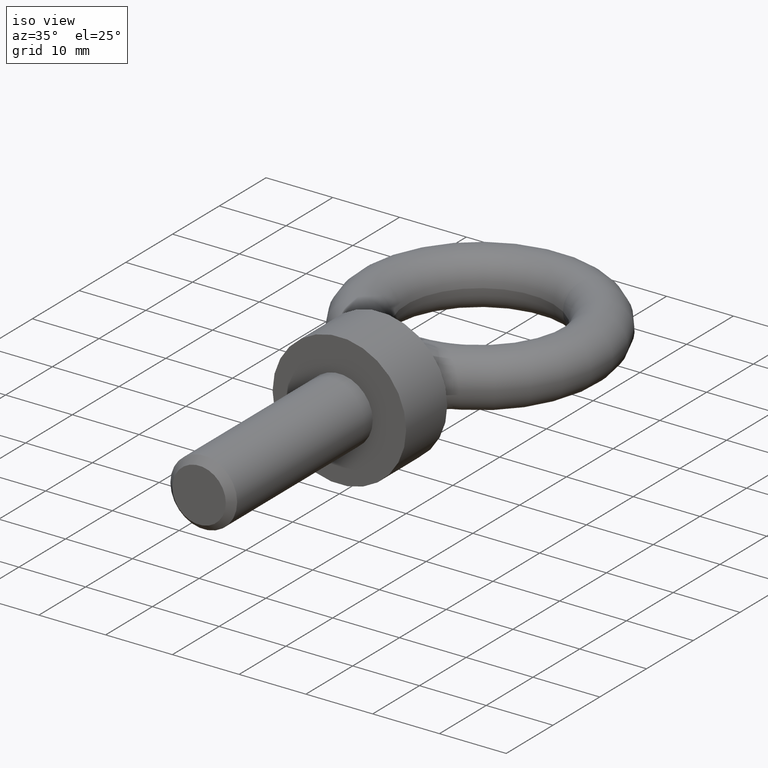
[diagram: clean part render]
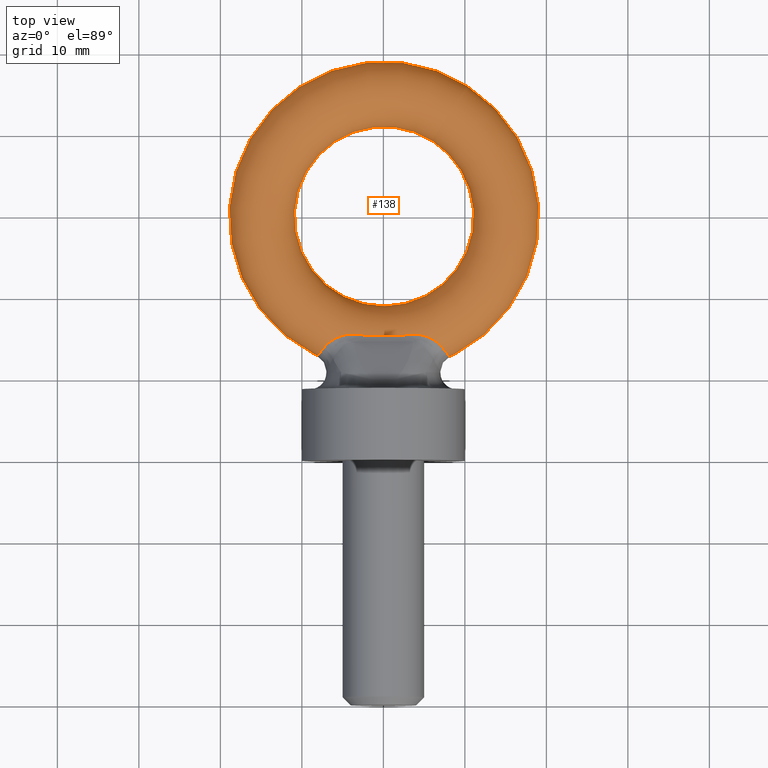
[diagram: tour spotlight — one face highlighted and labeled with its STEP entity id]
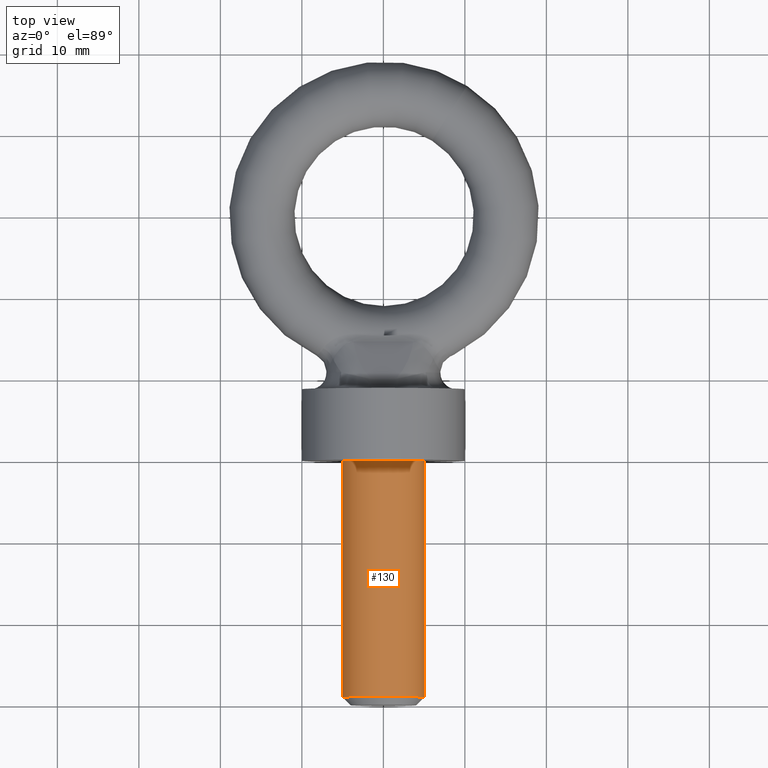
[diagram: tour spotlight — one face highlighted and labeled with its STEP entity id]
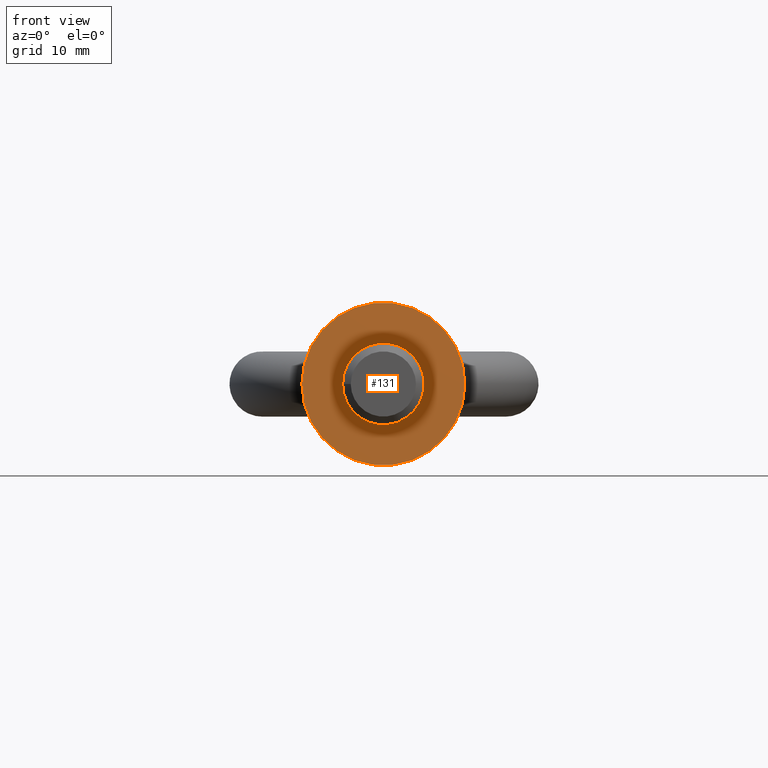
[diagram: tour spotlight — one face highlighted and labeled with its STEP entity id]
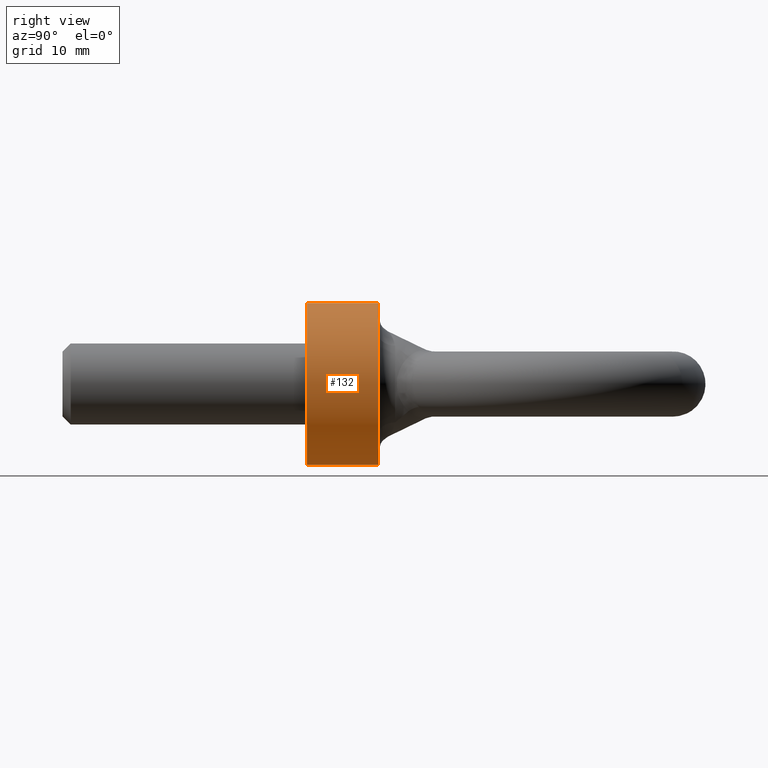
[diagram: tour spotlight — one face highlighted and labeled with its STEP entity id]
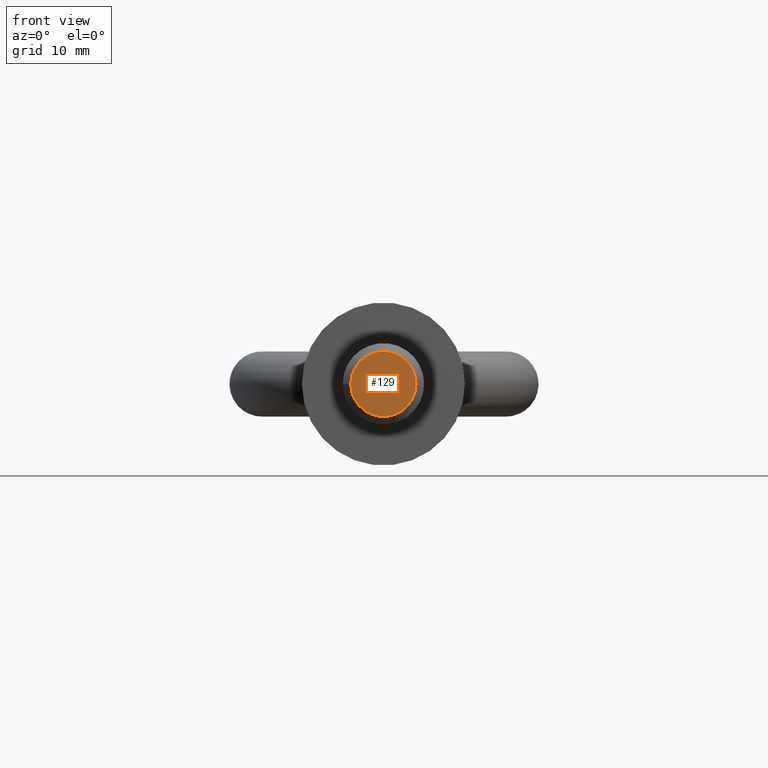
[diagram: tour spotlight — one face highlighted and labeled with its STEP entity id]
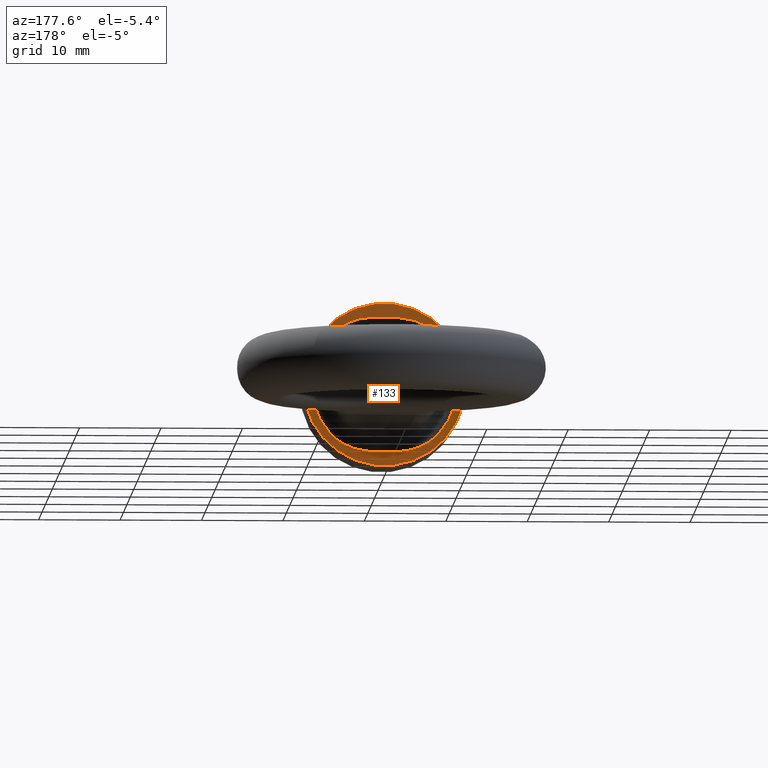
[diagram: tour spotlight — one face highlighted and labeled with its STEP entity id]
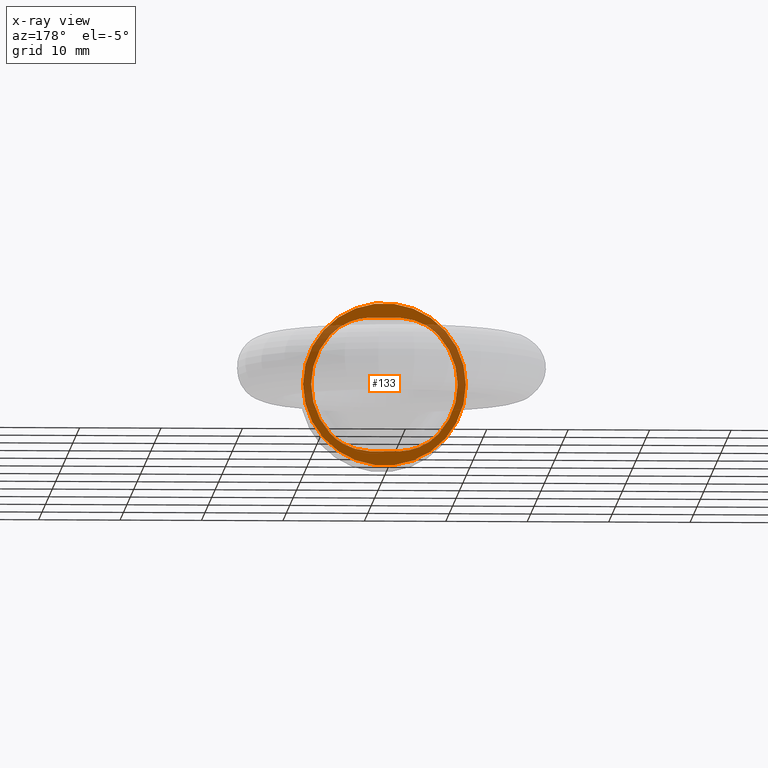
[diagram: x-ray of the same camera — body ghosted, this tour face saturated]
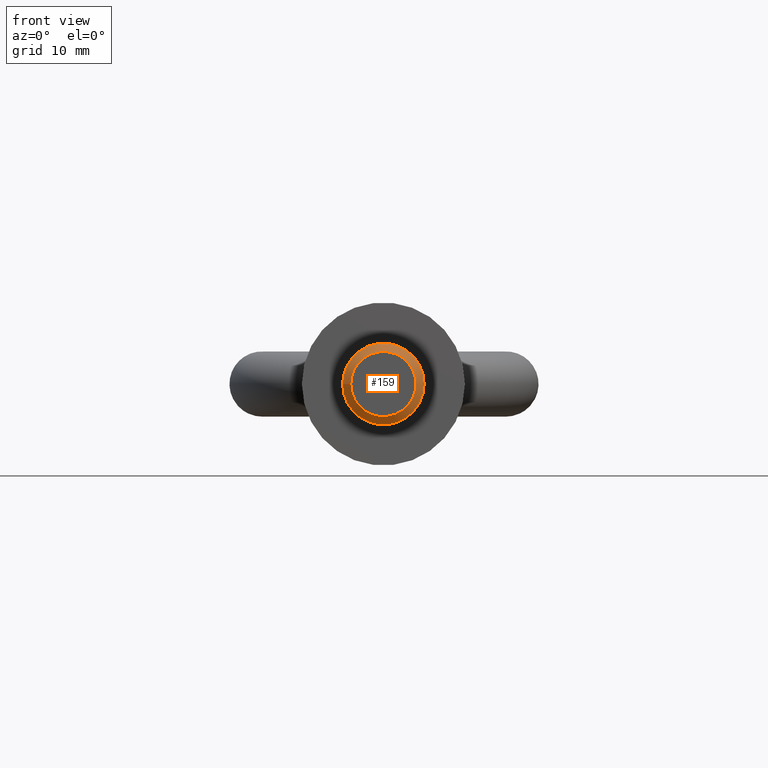
[diagram: tour spotlight — one face highlighted and labeled with its STEP entity id]
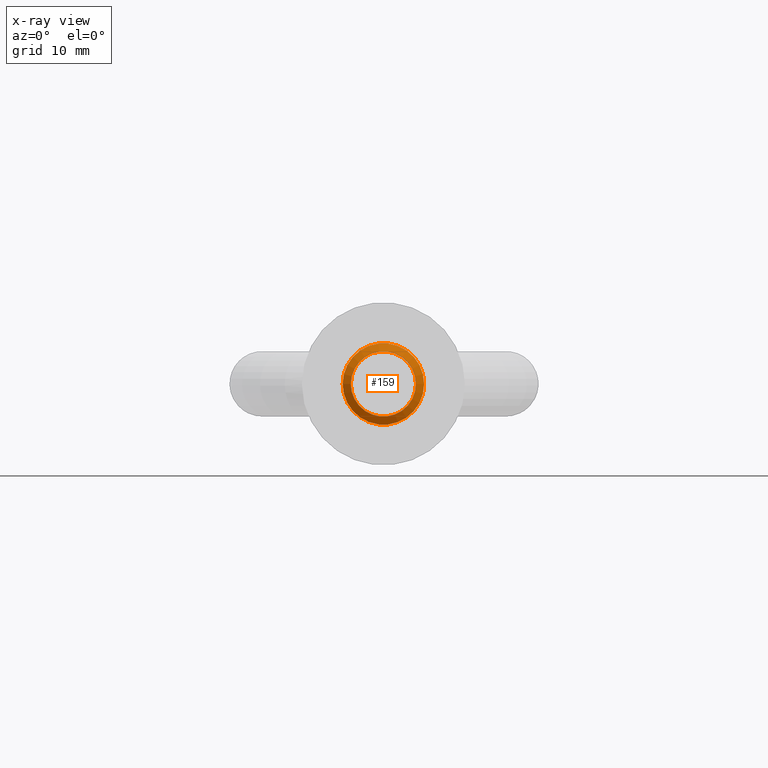
[diagram: x-ray of the same camera — body ghosted, this tour face saturated]
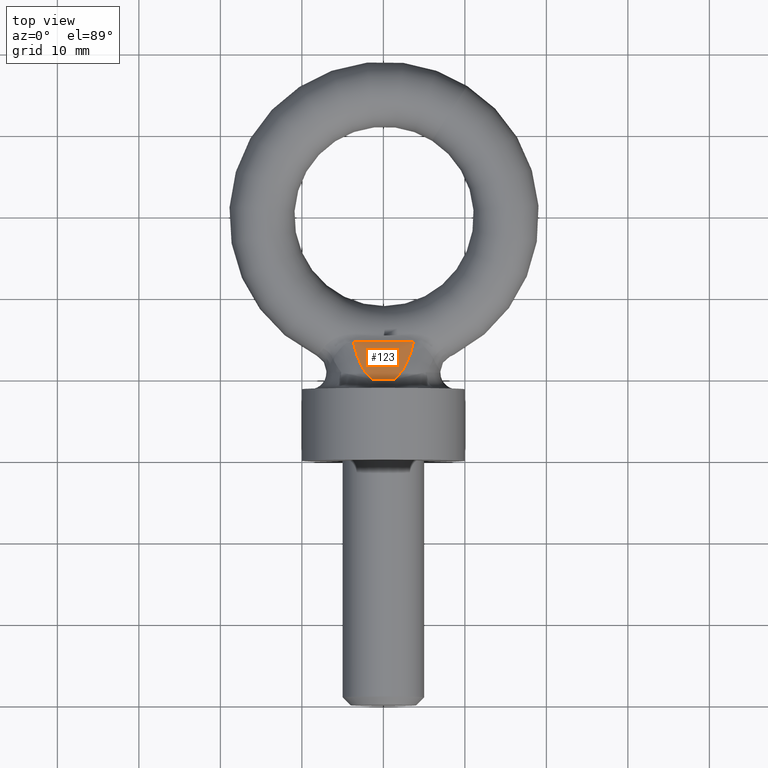
[diagram: tour spotlight — one face highlighted and labeled with its STEP entity id]
A machine part: a face-by-face anatomy tour. The part has 39 B-rep faces; the first image is the clean iso view, then the 8 largest visible faces are spotlighted one at a time (largest first), each with its STEP entity span.

Face 1 — top view, entity #138. In plain terms, the highlighted toroidal blend (fillet) surface has major radius 15 mm and minor (blend) radius 4 mm.
Definition (entity closure, byte-faithful):
#71=TOROIDAL_SURFACE('',#644,15.,4.);
#138=ADVANCED_FACE('',(#179),#71,.T.);
#179=FACE_OUTER_BOUND('',#221,.T.);
#221=EDGE_LOOP('',(#385,#386,#387,#388,#389,#390,#391,#392));
#272=B_SPLINE_CURVE_WITH_KNOTS('',3,(#1136,#1137,#1138,#1139,#1140,#1141,
#1142,#1143,#1144,#1145,#1146,#1147,#1148,#1149,#1150,#1151),
 .UNSPECIFIED.,.F.,.F.,(4,3,3,3,3,4),(0.,0.15909789168719,0.364577328480198,
0.573212527488741,0.786430730329106,1.),.UNSPECIFIED.);
#273=B_SPLINE_CURVE_WITH_KNOTS('',3,(#1154,#1155,#1156,#1157,#1158,#1159,
#1160,#1161,#1162,#1163,#1164,#1165,#1166),.UNSPECIFIED.,.F.,.F.,(4,3,3,
3,4),(0.,0.262582694506517,0.542864646387381,0.794197809493597,1.),
 .UNSPECIFIED.);
#274=B_SPLINE_CURVE_WITH_KNOTS('',3,(#1168,#1169,#1170,#1171,#1172,#1173,
#1174),.UNSPECIFIED.,.F.,.F.,(4,3,4),(0.,0.500311211927307,1.),
 .UNSPECIFIED.);
#275=B_SPLINE_CURVE_WITH_KNOTS('',3,(#1176,#1177,#1178,#1179,#1180,#1181,
#1182,#1183,#1184,#1185,#1186,#1187,#1188,#1189,#1190,#1191),
 .UNSPECIFIED.,.F.,.F.,(4,3,3,3,3,4),(0.,0.207138766899046,0.46842638514694,
0.715236311897754,0.939946079993814,1.),.UNSPECIFIED.);
#276=B_SPLINE_CURVE_WITH_KNOTS('',3,(#1193,#1194,#1195,#1196,#1197,#1198,
#1199,#1200,#1201,#1202,#1203,#1204,#1205,#1206,#1207,#1208),
 .UNSPECIFIED.,.F.,.F.,(4,3,3,3,3,4),(0.,0.147686227304317,0.356350986462394,
0.567843328554171,0.783760952120488,1.),.UNSPECIFIED.);
#277=B_SPLINE_CURVE_WITH_KNOTS('',3,(#1210,#1211,#1212,#1213,#1214,#1215,
#1216,#1217,#1218,#1219,#1220,#1221,#1222),.UNSPECIFIED.,.F.,.F.,(4,3,3,
3,4),(0.,0.261266191796051,0.539880421328269,0.793839228312718,1.),
 .UNSPECIFIED.);
#278=B_SPLINE_CURVE_WITH_KNOTS('',3,(#1224,#1225,#1226,#1227,#1228,#1229,
#1230),.UNSPECIFIED.,.F.,.F.,(4,3,4),(0.,0.499697961309435,1.),
 .UNSPECIFIED.);
#279=B_SPLINE_CURVE_WITH_KNOTS('',3,(#1232,#1233,#1234,#1235,#1236,#1237,
#1238,#1239,#1240,#1241,#1242,#1243,#1244,#1245,#1246,#1247),
 .UNSPECIFIED.,.F.,.F.,(4,3,3,3,3,4),(0.,0.204740230773372,0.464729897104955,
0.711068567929063,0.937177852689953,1.),.UNSPECIFIED.);
#385=ORIENTED_EDGE('',*,*,#577,.T.);
#386=ORIENTED_EDGE('',*,*,#578,.T.);
#387=ORIENTED_EDGE('',*,*,#579,.T.);
#388=ORIENTED_EDGE('',*,*,#580,.T.);
#389=ORIENTED_EDGE('',*,*,#581,.T.);
#390=ORIENTED_EDGE('',*,*,#582,.T.);
#391=ORIENTED_EDGE('',*,*,#583,.T.);
#392=ORIENTED_EDGE('',*,*,#584,.T.);
#516=VERTEX_POINT('',#1152);
#517=VERTEX_POINT('',#1153);
#518=VERTEX_POINT('',#1167);
#519=VERTEX_POINT('',#1175);
#520=VERTEX_POINT('',#1192);
#521=VERTEX_POINT('',#1209);
#522=VERTEX_POINT('',#1223);
#523=VERTEX_POINT('',#1231);
#577=EDGE_CURVE('',#516,#517,#272,.T.);
#578=EDGE_CURVE('',#517,#518,#273,.T.);
#579=EDGE_CURVE('',#518,#519,#274,.T.);
#580=EDGE_CURVE('',#519,#520,#275,.T.);
#581=EDGE_CURVE('',#520,#521,#276,.T.);
#582=EDGE_CURVE('',#521,#522,#277,.T.);
#583=EDGE_CURVE('',#522,#523,#278,.T.);
#584=EDGE_CURVE('',#523,#516,#279,.T.);
#644=AXIS2_PLACEMENT_3D('',#1248,#736,#737);
#736=DIRECTION('',(0.,0.,-1.));
#737=DIRECTION('',(-1.,0.,0.));
#1136=CARTESIAN_POINT('',(7.34929964028203,13.7394658069471,2.84680732212907));
#1137=CARTESIAN_POINT('',(7.4879196814596,13.5398314956395,2.61108416129786));
#1138=CARTESIAN_POINT('',(7.6246874164015,13.3715324922463,2.34411897940783));
#1139=CARTESIAN_POINT('',(7.74186939069608,13.2357610658269,2.05694431602676));
#1140=CARTESIAN_POINT('',(7.89235399900988,13.0614039597283,1.68815579717222));
#1141=CARTESIAN_POINT('',(8.01339754229928,12.9369704785941,1.27649433686526));
#1142=CARTESIAN_POINT('',(8.08204057493019,12.866989699223,0.852888607424278));
#1143=CARTESIAN_POINT('',(8.1516417508439,12.7960321038356,0.423370042132858));
#1144=CARTESIAN_POINT('',(8.1688362416467,12.779477353281,-0.0304895196372556));
#1145=CARTESIAN_POINT('',(8.1301891116724,12.8182790140327,-0.467943897177811));
#1146=CARTESIAN_POINT('',(8.09069546051498,12.8579305807873,-0.914980212561778));
#1147=CARTESIAN_POINT('',(7.99191051705369,12.9563574363329,-1.35783517728714));
#1148=CARTESIAN_POINT('',(7.85397890689987,13.1088982522315,-1.75868381817953));
#1149=CARTESIAN_POINT('',(7.71568653976988,13.2618380351503,-2.16058086953727));
#1150=CARTESIAN_POINT('',(7.53423580731998,13.4731291067928,-2.53232366250909));
#1151=CARTESIAN_POINT('',(7.34929964028203,13.7394658069471,-2.84680732212907));
#1152=CARTESIAN_POINT('',(7.34929964028203,13.7394658069471,2.84680732212907));
#1153=CARTESIAN_POINT('',(7.34929964028203,13.7394658069471,-2.84680732212907));
#1154=CARTESIAN_POINT('',(7.34929964028203,13.7394658069471,-2.84680732212907));
#1155=CARTESIAN_POINT('',(7.19069014763429,13.9678880218201,-3.11652251357723));
#1156=CARTESIAN_POINT('',(6.96090343632611,14.2080265666949,-3.34343315686789));
#1157=CARTESIAN_POINT('',(6.68986555721331,14.427902569693,-3.51157885349732));
#1158=CARTESIAN_POINT('',(6.40004448325074,14.6630161985928,-3.69137721429783));
#1159=CARTESIAN_POINT('',(6.05405138751364,14.8834663054146,-3.81149579690715));
#1160=CARTESIAN_POINT('',(5.68524285030345,15.0577488103531,-3.88366223860285));
#1161=CARTESIAN_POINT('',(5.35311579485586,15.2146972791145,-3.94865104814568));
#1162=CARTESIAN_POINT('',(4.99361322242017,15.3384053740473,-3.97745279303032));
#1163=CARTESIAN_POINT('',(4.62691693330479,15.4058238180835,-3.98983556838096));
#1164=CARTESIAN_POINT('',(4.32588965632239,15.4611687758291,-4.00000080117968));
#1165=CARTESIAN_POINT('',(4.01480729599023,15.4782346602907,-4.00010353145739));
#1166=CARTESIAN_POINT('',(3.70951819762463,15.4541022902384,-3.99998983040392));
#1167=CARTESIAN_POINT('',(3.70951819762463,15.4541022902384,-3.99998983040392));
#1168=CARTESIAN_POINT('',(3.70951819762463,15.4541022902384,-3.99998983040392));
#1169=CARTESIAN_POINT('',(2.47590603766766,15.3565882116011,-3.99953038719774));
#1170=CARTESIAN_POINT('',(1.23654504611935,15.3332069861306,-3.98551895820489));
#1171=CARTESIAN_POINT('',(-0.000914385133682038,15.3346545963869,-3.98599670469061));
#1172=CARTESIAN_POINT('',(-1.2367821637626,15.336100344689,-3.98647383668633));
#1173=CARTESIAN_POINT('',(-2.47465520760178,15.3632068753702,-4.00092782027179));
#1174=CARTESIAN_POINT('',(-3.70611233821099,15.4675326988856,-3.99995719374343));
#1175=CARTESIAN_POINT('',(-3.70611233821099,15.4675326988856,-3.99995719374343));
#1176=CARTESIAN_POINT('',(-3.70611233821099,15.4675326988856,-3.99995719374343));
#1177=CARTESIAN_POINT('',(-4.0130136734725,15.4935325763829,-3.99971529610026));
#1178=CARTESIAN_POINT('',(-4.32593635472544,15.4785696263463,-3.9988361478515));
#1179=CARTESIAN_POINT('',(-4.62905761707425,15.4251829640779,-3.98735371197987));
#1180=CARTESIAN_POINT('',(-5.01010041655725,15.3580725176242,-3.97291955623801));
#1181=CARTESIAN_POINT('',(-5.38405055423375,15.230644149059,-3.94003746464635));
#1182=CARTESIAN_POINT('',(-5.72773468320407,15.0680170801753,-3.86696607576376));
#1183=CARTESIAN_POINT('',(-6.05234102601068,14.9144173831806,-3.79795085419959));
#1184=CARTESIAN_POINT('',(-6.35802097468397,14.7257625419414,-3.69094321444352));
#1185=CARTESIAN_POINT('',(-6.62153689007833,14.5236632709227,-3.53784033236005));
#1186=CARTESIAN_POINT('',(-6.86140543798536,14.3396999660887,-3.39847658292282));
#1187=CARTESIAN_POINT('',(-7.07175164335261,14.1399968576418,-3.21710657564986));
#1188=CARTESIAN_POINT('',(-7.23292848276148,13.9443403059638,-3.00137013301362));
#1189=CARTESIAN_POINT('',(-7.27658184820669,13.8913484059894,-2.9429397666856));
#1190=CARTESIAN_POINT('',(-7.31690796724931,13.8384028326893,-2.8818206198962));
#1191=CARTESIAN_POINT('',(-7.35359067786397,13.7859096054844,-2.81836429376237));
#1192=CARTESIAN_POINT('',(-7.35359067786397,13.7859096054844,-2.81836429376237));
#1193=CARTESIAN_POINT('',(-7.35359067786397,13.7859096054844,-2.81836429376237));
#1194=CARTESIAN_POINT('',(-7.47991711772747,13.6051355460265,-2.59983595621631));
#1195=CARTESIAN_POINT('',(-7.6041664794225,13.4509228462124,-2.35535939183958));
#1196=CARTESIAN_POINT('',(-7.71260021393439,13.3240932163842,-2.09354145030467));
#1197=CARTESIAN_POINT('',(-7.86475101282607,13.1461298769459,-1.72616676614363));
#1198=CARTESIAN_POINT('',(-7.98837173126105,13.01842596837,-1.31536288096882));
#1199=CARTESIAN_POINT('',(-8.05991052301959,12.9452509382469,-0.891909706945956));
#1200=CARTESIAN_POINT('',(-8.13232335666707,12.8711818751107,-0.463282894914936));
#1201=CARTESIAN_POINT('',(-8.15293631705708,12.8513171451247,-0.00969033832887281));
#1202=CARTESIAN_POINT('',(-8.11764902070549,12.8867438870283,0.428431267229335));
#1203=CARTESIAN_POINT('',(-8.0816268672797,12.9229083899562,0.875676744392789));
#1204=CARTESIAN_POINT('',(-7.98645080783975,13.0175762595437,1.3196941003762));
#1205=CARTESIAN_POINT('',(-7.85148308836725,13.166433266135,1.72250831306202));
#1206=CARTESIAN_POINT('',(-7.71618856804054,13.3156507040731,2.12629787029175));
#1207=CARTESIAN_POINT('',(-7.53719360664708,13.5231724714343,2.50075506770553));
#1208=CARTESIAN_POINT('',(-7.35359067786397,13.7859096054844,2.81836429376237));
#1209=CARTESIAN_POINT('',(-7.35359067786397,13.7859096054844,2.81836429376237));
#1210=CARTESIAN_POINT('',(-7.35359067786397,13.7859096054844,2.81836429376237));
#1211=CARTESIAN_POINT('',(-7.1965893980972,14.0105795852147,3.08995612123023));
#1212=CARTESIAN_POINT('',(-6.96843934294749,14.2468565460777,3.31972130369582));
#1213=CARTESIAN_POINT('',(-6.69868338999509,14.4631678498075,3.4909792031142));
#1214=CARTESIAN_POINT('',(-6.41052629040306,14.6942346240883,3.67391929781282));
#1215=CARTESIAN_POINT('',(-6.06590331930594,14.9108387541638,3.79767689674091));
#1216=CARTESIAN_POINT('',(-5.69847964024449,15.0817424020939,3.87307735867128));
#1217=CARTESIAN_POINT('',(-5.3622194940942,15.2381506275446,3.94208262913526));
#1218=CARTESIAN_POINT('',(-4.9977140201832,15.3605249682518,3.97346889233421));
#1219=CARTESIAN_POINT('',(-4.62641933152512,15.4256466612329,3.9874533661199));
#1220=CARTESIAN_POINT('',(-4.32412989166753,15.4786654646124,3.99883882052179));
#1221=CARTESIAN_POINT('',(-4.01213089811756,15.4934577899664,3.99971599189806));
#1222=CARTESIAN_POINT('',(-3.70611233821103,15.4675326988856,3.99995719374343));
#1223=CARTESIAN_POINT('',(-3.70611233821103,15.4675326988856,3.99995719374343));
#1224=CARTESIAN_POINT('',(-3.70611233821103,15.4675326988856,3.99995719374343));
#1225=CARTESIAN_POINT('',(-2.47463261505522,15.363204961389,4.00092783807898));
#1226=CARTESIAN_POINT('',(-1.23673677703314,15.3360991281043,3.98647343604655));
#1227=CARTESIAN_POINT('',(-0.00084632343061699,15.3346545167987,3.98599667842455));
#1228=CARTESIAN_POINT('',(1.23659043491032,15.3332080980438,3.98551932429938));
#1229=CARTESIAN_POINT('',(2.47592864159512,15.3565899983871,3.99953039561638));
#1230=CARTESIAN_POINT('',(3.70951819762463,15.4541022902384,3.99998983040392));
#1231=CARTESIAN_POINT('',(3.70951819762463,15.4541022902384,3.99998983040392));
#1232=CARTESIAN_POINT('',(3.70951819762463,15.4541022902384,3.99998983040392));
#1233=CARTESIAN_POINT('',(4.01270892583343,15.4780687891692,4.00010274994604));
#1234=CARTESIAN_POINT('',(4.32159924145844,15.4614257077016,3.99999637744174));
#1235=CARTESIAN_POINT('',(4.62065530262077,15.4069695315932,3.99004546495469));
#1236=CARTESIAN_POINT('',(4.99913784668121,15.3380503062372,3.97745168351055));
#1237=CARTESIAN_POINT('',(5.37016451141339,15.2090293251731,3.94745674986602));
#1238=CARTESIAN_POINT('',(5.71156807279332,15.0452129679476,3.87842553594317));
#1239=CARTESIAN_POINT('',(6.03502528386144,14.8900078440722,3.81302304323957));
#1240=CARTESIAN_POINT('',(6.33983860590792,14.699911987912,3.71059272842519));
#1241=CARTESIAN_POINT('',(6.60358492068406,14.4961954546507,3.56251119872284));
#1242=CARTESIAN_POINT('',(6.84555491718744,14.3092988571275,3.42665607879556));
#1243=CARTESIAN_POINT('',(7.05836879058855,14.1062663333088,3.2486326126029));
#1244=CARTESIAN_POINT('',(7.22211616454493,13.907113764053,3.03541562766685));
#1245=CARTESIAN_POINT('',(7.26821789643858,13.8510439894243,2.97538613200413));
#1246=CARTESIAN_POINT('',(7.31073436441585,13.7950057723267,2.91238751275864));
#1247=CARTESIAN_POINT('',(7.34929964028203,13.7394658069471,2.84680732212907));
#1248=CARTESIAN_POINT('',(0.0837289890841756,30.,0.));

Face 2 — top view, entity #130. In plain terms, the highlighted cylindrical surface (bore or boss wall) has radius 5 mm, axis along (-0, 1, 0).
Definition (entity closure, byte-faithful):
#74=FACE_BOUND('',#209,.T.);
#75=FACE_BOUND('',#210,.T.);
#130=ADVANCED_FACE('',(#74,#75),#162,.T.);
#162=CYLINDRICAL_SURFACE('',#636,5.);
#209=EDGE_LOOP('',(#354));
#210=EDGE_LOOP('',(#355));
#287=CIRCLE('',#634,5.);
#288=CIRCLE('',#635,5.);
#354=ORIENTED_EDGE('',*,*,#557,.T.);
#355=ORIENTED_EDGE('',*,*,#558,.F.);
#500=VERTEX_POINT('',#1013);
#501=VERTEX_POINT('',#1015);
#557=EDGE_CURVE('',#500,#500,#287,.T.);
#558=EDGE_CURVE('',#501,#501,#288,.T.);
#634=AXIS2_PLACEMENT_3D('',#1012,#714,#715);
#635=AXIS2_PLACEMENT_3D('',#1014,#716,#717);
#636=AXIS2_PLACEMENT_3D('',#1016,#718,#719);
#714=DIRECTION('',(-1.1682767539609E-18,1.,0.));
#715=DIRECTION('',(-1.,0.,0.));
#716=DIRECTION('',(-1.1682767539609E-18,1.,0.));
#717=DIRECTION('',(-1.,-1.1682767539609E-18,0.));
#718=DIRECTION('',(-1.1682767539609E-18,1.,0.));
#719=DIRECTION('',(-1.,0.,0.));
#1012=CARTESIAN_POINT('',(5.14041771742796E-17,-29.,0.));
#1013=CARTESIAN_POINT('',(-5.,-29.,0.));
#1014=CARTESIAN_POINT('',(1.75241513094135E-17,0.,0.));
#1015=CARTESIAN_POINT('',(-5.,-5.8413837698045E-18,0.));
#1016=CARTESIAN_POINT('',(5.25724539282405E-17,-30.,0.));

Face 3 — front view, entity #131. In plain terms, the highlighted planar face has unit normal (-0, 1, 0).
Definition (entity closure, byte-faithful):
#76=FACE_BOUND('',#211,.T.);
#77=FACE_BOUND('',#212,.T.);
#111=PLANE('',#638);
#131=ADVANCED_FACE('',(#76,#77),#111,.F.);
#211=EDGE_LOOP('',(#356));
#212=EDGE_LOOP('',(#357));
#288=CIRCLE('',#635,5.);
#289=CIRCLE('',#637,10.);
#356=ORIENTED_EDGE('',*,*,#559,.F.);
#357=ORIENTED_EDGE('',*,*,#558,.T.);
#501=VERTEX_POINT('',#1015);
#502=VERTEX_POINT('',#1018);
#558=EDGE_CURVE('',#501,#501,#288,.T.);
#559=EDGE_CURVE('',#502,#502,#289,.T.);
#635=AXIS2_PLACEMENT_3D('',#1014,#716,#717);
#637=AXIS2_PLACEMENT_3D('',#1017,#720,#721);
#638=AXIS2_PLACEMENT_3D('',#1019,#722,#723);
#716=DIRECTION('',(-1.1682767539609E-18,1.,0.));
#717=DIRECTION('',(-1.,-1.1682767539609E-18,0.));
#720=DIRECTION('',(-1.1682767539609E-18,1.,0.));
#721=DIRECTION('',(-1.,-1.1682767539609E-18,0.));
#722=DIRECTION('',(-1.1682767539609E-18,1.,0.));
#723=DIRECTION('',(-1.,-1.1682767539609E-18,0.));
#1014=CARTESIAN_POINT('',(1.75241513094135E-17,0.,0.));
#1015=CARTESIAN_POINT('',(-5.,-5.8413837698045E-18,0.));
#1017=CARTESIAN_POINT('',(1.75241513094135E-17,0.,0.));
#1018=CARTESIAN_POINT('',(-10.,-1.1682767539609E-17,0.));
#1019=CARTESIAN_POINT('',(5.,-4.47009901734965E-16,0.));

Face 4 — right view, entity #132. In plain terms, the highlighted cylindrical surface (bore or boss wall) has radius 10 mm, axis along (-0, 1, 0).
Definition (entity closure, byte-faithful):
#78=FACE_BOUND('',#213,.T.);
#79=FACE_BOUND('',#214,.T.);
#132=ADVANCED_FACE('',(#78,#79),#163,.T.);
#163=CYLINDRICAL_SURFACE('',#640,10.);
#213=EDGE_LOOP('',(#358));
#214=EDGE_LOOP('',(#359));
#289=CIRCLE('',#637,10.);
#290=CIRCLE('',#639,10.);
#358=ORIENTED_EDGE('',*,*,#560,.F.);
#359=ORIENTED_EDGE('',*,*,#559,.T.);
#502=VERTEX_POINT('',#1018);
#503=VERTEX_POINT('',#1021);
#559=EDGE_CURVE('',#502,#502,#289,.T.);
#560=EDGE_CURVE('',#503,#503,#290,.T.);
#637=AXIS2_PLACEMENT_3D('',#1017,#720,#721);
#639=AXIS2_PLACEMENT_3D('',#1020,#724,#725);
#640=AXIS2_PLACEMENT_3D('',#1022,#726,#727);
#720=DIRECTION('',(-1.1682767539609E-18,1.,0.));
#721=DIRECTION('',(-1.,-1.1682767539609E-18,0.));
#724=DIRECTION('',(-1.1682767539609E-18,1.,0.));
#725=DIRECTION('',(-1.,0.,0.));
#726=DIRECTION('',(-1.1682767539609E-18,1.,0.));
#727=DIRECTION('',(-1.,0.,0.));
#1017=CARTESIAN_POINT('',(1.75241513094135E-17,0.,0.));
#1018=CARTESIAN_POINT('',(-10.,-1.1682767539609E-17,0.));
#1020=CARTESIAN_POINT('',(7.24331587455758E-18,8.8,0.));
#1021=CARTESIAN_POINT('',(-10.,8.8,0.));
#1022=CARTESIAN_POINT('',(5.25724539282405E-17,-30.,0.));

Face 5 — front view, entity #129. In plain terms, the highlighted planar face has unit normal (-0, 1, 0).
Definition (entity closure, byte-faithful):
#110=PLANE('',#633);
#129=ADVANCED_FACE('',(#174),#110,.F.);
#174=FACE_OUTER_BOUND('',#208,.T.);
#208=EDGE_LOOP('',(#353));
#286=CIRCLE('',#632,4.);
#353=ORIENTED_EDGE('',*,*,#556,.T.);
#499=VERTEX_POINT('',#1010);
#556=EDGE_CURVE('',#499,#499,#286,.T.);
#632=AXIS2_PLACEMENT_3D('',#1009,#710,#711);
#633=AXIS2_PLACEMENT_3D('',#1011,#712,#713);
#710=DIRECTION('',(1.1682767539609E-18,-1.,0.));
#711=DIRECTION('',(-1.,0.,0.));
#712=DIRECTION('',(-1.1682767539609E-18,1.,0.));
#713=DIRECTION('',(-1.,0.,0.));
#1009=CARTESIAN_POINT('',(5.25724539282405E-17,-30.,0.));
#1010=CARTESIAN_POINT('',(-4.,-30.,0.));
#1011=CARTESIAN_POINT('',(3.41217643461354E-36,-30.,0.));

Face 6 — auxiliary view, entity #133. An x-ray twin of the same camera follows (body ghosted, this face saturated) — the face is partly hidden behind the body. In plain terms, the highlighted planar face has unit normal (0, -1, 0).
Definition (entity closure, byte-faithful):
#80=FACE_BOUND('',#215,.T.);
#81=FACE_BOUND('',#216,.T.);
#112=PLANE('',#643);
#115=LINE('',#1036,#119);
#116=LINE('',#1060,#120);
#119=VECTOR('',#730,1.);
#120=VECTOR('',#733,1.);
#133=ADVANCED_FACE('',(#80,#81),#112,.F.);
#215=EDGE_LOOP('',(#360,#361,#362,#363,#364,#365,#366,#367,#368,#369,#370,
#371));
#216=EDGE_LOOP('',(#372));
#260=B_SPLINE_CURVE_WITH_KNOTS('',3,(#1026,#1027,#1028,#1029),
 .UNSPECIFIED.,.F.,.F.,(4,4),(0.,1.),.UNSPECIFIED.);
#261=B_SPLINE_CURVE_WITH_KNOTS('',3,(#1031,#1032,#1033,#1034),
 .UNSPECIFIED.,.F.,.F.,(4,4),(0.,1.),.UNSPECIFIED.);
#262=B_SPLINE_CURVE_WITH_KNOTS('',3,(#1038,#1039,#1040,#1041),
 .UNSPECIFIED.,.F.,.F.,(4,4),(0.,1.),.UNSPECIFIED.);
#263=B_SPLINE_CURVE_WITH_KNOTS('',3,(#1043,#1044,#1045,#1046),
 .UNSPECIFIED.,.F.,.F.,(4,4),(0.,1.),.UNSPECIFIED.);
#264=B_SPLINE_CURVE_WITH_KNOTS('',3,(#1050,#1051,#1052,#1053),
 .UNSPECIFIED.,.F.,.F.,(4,4),(0.,1.),.UNSPECIFIED.);
#265=B_SPLINE_CURVE_WITH_KNOTS('',3,(#1055,#1056,#1057,#1058),
 .UNSPECIFIED.,.F.,.F.,(4,4),(0.,1.),.UNSPECIFIED.);
#266=B_SPLINE_CURVE_WITH_KNOTS('',3,(#1062,#1063,#1064,#1065),
 .UNSPECIFIED.,.F.,.F.,(4,4),(0.,1.),.UNSPECIFIED.);
#267=B_SPLINE_CURVE_WITH_KNOTS('',3,(#1067,#1068,#1069,#1070),
 .UNSPECIFIED.,.F.,.F.,(4,4),(0.,1.),.UNSPECIFIED.);
#290=CIRCLE('',#639,10.);
#291=CIRCLE('',#641,9.);
#292=CIRCLE('',#642,9.);
#360=ORIENTED_EDGE('',*,*,#561,.T.);
#361=ORIENTED_EDGE('',*,*,#562,.T.);
#362=ORIENTED_EDGE('',*,*,#563,.T.);
#363=ORIENTED_EDGE('',*,*,#564,.T.);
#364=ORIENTED_EDGE('',*,*,#565,.T.);
#365=ORIENTED_EDGE('',*,*,#566,.T.);
#366=ORIENTED_EDGE('',*,*,#567,.T.);
#367=ORIENTED_EDGE('',*,*,#568,.T.);
#368=ORIENTED_EDGE('',*,*,#569,.T.);
#369=ORIENTED_EDGE('',*,*,#570,.T.);
#370=ORIENTED_EDGE('',*,*,#571,.T.);
#371=ORIENTED_EDGE('',*,*,#572,.T.);
#372=ORIENTED_EDGE('',*,*,#560,.T.);
#503=VERTEX_POINT('',#1021);
#504=VERTEX_POINT('',#1024);
#505=VERTEX_POINT('',#1025);
#506=VERTEX_POINT('',#1030);
#507=VERTEX_POINT('',#1035);
#508=VERTEX_POINT('',#1037);
#509=VERTEX_POINT('',#1042);
#510=VERTEX_POINT('',#1047);
#511=VERTEX_POINT('',#1049);
#512=VERTEX_POINT('',#1054);
#513=VERTEX_POINT('',#1059);
#514=VERTEX_POINT('',#1061);
#515=VERTEX_POINT('',#1066);
#560=EDGE_CURVE('',#503,#503,#290,.T.);
#561=EDGE_CURVE('',#504,#505,#291,.T.);
#562=EDGE_CURVE('',#505,#506,#260,.T.);
#563=EDGE_CURVE('',#506,#507,#261,.T.);
#564=EDGE_CURVE('',#507,#508,#115,.T.);
#565=EDGE_CURVE('',#508,#509,#262,.T.);
#566=EDGE_CURVE('',#509,#510,#263,.T.);
#567=EDGE_CURVE('',#510,#511,#292,.T.);
#568=EDGE_CURVE('',#511,#512,#264,.T.);
#569=EDGE_CURVE('',#512,#513,#265,.T.);
#570=EDGE_CURVE('',#513,#514,#116,.T.);
#571=EDGE_CURVE('',#514,#515,#266,.T.);
#572=EDGE_CURVE('',#515,#504,#267,.T.);
#639=AXIS2_PLACEMENT_3D('',#1020,#724,#725);
#641=AXIS2_PLACEMENT_3D('',#1023,#728,#729);
#642=AXIS2_PLACEMENT_3D('',#1048,#731,#732);
#643=AXIS2_PLACEMENT_3D('',#1071,#734,#735);
#724=DIRECTION('',(-1.1682767539609E-18,1.,0.));
#725=DIRECTION('',(-1.,0.,0.));
#728=DIRECTION('',(1.1682767539609E-18,-1.,0.));
#729=DIRECTION('',(1.,0.,0.));
#730=DIRECTION('',(-1.,-1.1682767539609E-18,5.65295203529468E-19));
#731=DIRECTION('',(1.1682767539609E-18,-1.,0.));
#732=DIRECTION('',(1.,0.,0.));
#733=DIRECTION('',(1.,1.1682767539609E-18,5.65295203529468E-19));
#734=DIRECTION('',(1.1682767539609E-18,-1.,0.));
#735=DIRECTION('',(1.,1.73472347597681E-18,0.));
#1020=CARTESIAN_POINT('',(7.24331587455758E-18,8.8,0.));
#1021=CARTESIAN_POINT('',(-10.,8.8,0.));
#1023=CARTESIAN_POINT('',(7.24331587455758E-18,8.8,0.));
#1024=CARTESIAN_POINT('',(6.6413588680732,8.8,-6.07390750550792));
#1025=CARTESIAN_POINT('',(6.64135886807321,8.8,6.07390750550792));
#1026=CARTESIAN_POINT('',(6.64135886807321,8.8,6.07390750550792));
#1027=CARTESIAN_POINT('',(5.39991888220908,8.8,7.43132831769888));
#1028=CARTESIAN_POINT('',(3.62366853130257,8.8,8.16812915594195));
#1029=CARTESIAN_POINT('',(1.79113563998935,8.8,8.24572896153963));
#1030=CARTESIAN_POINT('',(1.79113563998934,8.8,8.24572896153961));
#1031=CARTESIAN_POINT('',(1.79113563998934,8.8,8.24572896153961));
#1032=CARTESIAN_POINT('',(1.66025212900679,8.8,8.2512713095413));
#1033=CARTESIAN_POINT('',(1.52922291767472,8.8,8.25408714293158));
#1034=CARTESIAN_POINT('',(1.39822211207226,8.8,8.25408714293194));
#1035=CARTESIAN_POINT('',(1.39822211207226,8.8,8.25408714293194));
#1036=CARTESIAN_POINT('',(10.,8.8,8.25408714293194));
#1037=CARTESIAN_POINT('',(-1.39822211207227,8.8,8.25408714293194));
#1038=CARTESIAN_POINT('',(-1.39822211207227,8.8,8.25408714293194));
#1039=CARTESIAN_POINT('',(-1.5292229176756,8.8,8.25408714293158));
#1040=CARTESIAN_POINT('',(-1.66025212900854,8.8,8.25127130954126));
#1041=CARTESIAN_POINT('',(-1.79113563999196,8.8,8.2457289615395));
#1042=CARTESIAN_POINT('',(-1.79113563999196,8.8,8.2457289615395));
#1043=CARTESIAN_POINT('',(-1.79113563999196,8.8,8.2457289615395));
#1044=CARTESIAN_POINT('',(-3.62423497564576,8.8,8.16810516948466));
#1045=CARTESIAN_POINT('',(-5.40100425000854,8.8,7.43014155002857));
#1046=CARTESIAN_POINT('',(-6.64135886807321,8.8,6.07390750550792));
#1047=CARTESIAN_POINT('',(-6.64135886807321,8.8,6.07390750550791));
#1048=CARTESIAN_POINT('',(7.24331587455758E-18,8.8,0.));
#1049=CARTESIAN_POINT('',(-6.64135886807321,8.8,-6.07390750550791));
#1050=CARTESIAN_POINT('',(-6.64135886807321,8.8,-6.07390750550791));
#1051=CARTESIAN_POINT('',(-5.39991888220909,8.8,-7.43132831769888));
#1052=CARTESIAN_POINT('',(-3.62366853130258,8.8,-8.16812915594195));
#1053=CARTESIAN_POINT('',(-1.79113563998935,8.8,-8.24572896153963));
#1054=CARTESIAN_POINT('',(-1.79113563998935,8.8,-8.24572896153961));
#1055=CARTESIAN_POINT('',(-1.79113563998935,8.8,-8.24572896153961));
#1056=CARTESIAN_POINT('',(-1.66025212900668,8.8,-8.2512713095413));
#1057=CARTESIAN_POINT('',(-1.52922291767451,8.8,-8.25408714293159));
#1058=CARTESIAN_POINT('',(-1.39822211207194,8.8,-8.25408714293194));
#1059=CARTESIAN_POINT('',(-1.39822211207194,8.8,-8.25408714293194));
#1060=CARTESIAN_POINT('',(10.,8.8,-8.25408714293194));
#1061=CARTESIAN_POINT('',(1.39822211207226,8.8,-8.25408714293195));
#1062=CARTESIAN_POINT('',(1.39822211207226,8.8,-8.25408714293195));
#1063=CARTESIAN_POINT('',(1.52922291767559,8.8,-8.25408714293159));
#1064=CARTESIAN_POINT('',(1.66025212900854,8.8,-8.25127130954126));
#1065=CARTESIAN_POINT('',(1.79113563999196,8.8,-8.2457289615395));
#1066=CARTESIAN_POINT('',(1.79113563999196,8.8,-8.2457289615395));
#1067=CARTESIAN_POINT('',(1.79113563999196,8.8,-8.2457289615395));
#1068=CARTESIAN_POINT('',(3.62423497564576,8.8,-8.16810516948466));
#1069=CARTESIAN_POINT('',(5.40100425000853,8.8,-7.43014155002857));
#1070=CARTESIAN_POINT('',(6.64135886807321,8.8,-6.07390750550792));
#1071=CARTESIAN_POINT('',(10.,8.8,0.));

Face 7 — front view, entity #159. An x-ray twin of the same camera follows (body ghosted, this face saturated) — the face is partly hidden behind the body. In plain terms, the highlighted conical surface has half-angle 45 deg.
Definition (entity closure, byte-faithful):
#70=CONICAL_SURFACE('',#669,5.,45.);
#82=FACE_BOUND('',#242,.T.);
#83=FACE_BOUND('',#243,.T.);
#159=ADVANCED_FACE('',(#82,#83),#70,.T.);
#242=EDGE_LOOP('',(#473));
#243=EDGE_LOOP('',(#474));
#286=CIRCLE('',#632,4.);
#287=CIRCLE('',#634,5.);
#473=ORIENTED_EDGE('',*,*,#556,.F.);
#474=ORIENTED_EDGE('',*,*,#557,.F.);
#499=VERTEX_POINT('',#1010);
#500=VERTEX_POINT('',#1013);
#556=EDGE_CURVE('',#499,#499,#286,.T.);
#557=EDGE_CURVE('',#500,#500,#287,.T.);
#632=AXIS2_PLACEMENT_3D('',#1009,#710,#711);
#634=AXIS2_PLACEMENT_3D('',#1012,#714,#715);
#669=AXIS2_PLACEMENT_3D('',#1537,#786,#787);
#710=DIRECTION('',(1.1682767539609E-18,-1.,0.));
#711=DIRECTION('',(-1.,0.,0.));
#714=DIRECTION('',(-1.1682767539609E-18,1.,0.));
#715=DIRECTION('',(-1.,0.,0.));
#786=DIRECTION('',(-1.1682767539609E-18,1.,0.));
#787=DIRECTION('',(-1.,-2.76174881747552E-17,0.));
#1009=CARTESIAN_POINT('',(5.25724539282405E-17,-30.,0.));
#1010=CARTESIAN_POINT('',(-4.,-30.,0.));
#1012=CARTESIAN_POINT('',(5.14041771742796E-17,-29.,0.));
#1013=CARTESIAN_POINT('',(-5.,-29.,0.));
#1537=CARTESIAN_POINT('',(5.14041771742796E-17,-29.,0.));

Face 8 — top view, entity #123. In plain terms, the highlighted planar face has unit normal (0, 0.4356, 0.9002).
Definition (entity closure, byte-faithful):
#108=PLANE('',#624);
#113=LINE('',#823,#117);
#117=VECTOR('',#688,1.);
#123=ADVANCED_FACE('',(#168),#108,.T.);
#168=FACE_OUTER_BOUND('',#202,.T.);
#202=EDGE_LOOP('',(#321,#322,#323,#324,#325,#326));
#246=B_SPLINE_CURVE_WITH_KNOTS('',3,(#817,#818,#819,#820),.UNSPECIFIED.,
 .F.,.F.,(4,4),(0.,1.),.UNSPECIFIED.);
#247=B_SPLINE_CURVE_WITH_KNOTS('',3,(#825,#826,#827,#828),.UNSPECIFIED.,
 .F.,.F.,(4,4),(0.,1.),.UNSPECIFIED.);
#248=B_SPLINE_CURVE_WITH_KNOTS('',3,(#832,#833,#834,#835,#836,#837,#838),
 .UNSPECIFIED.,.F.,.F.,(4,3,4),(0.,0.499991688149613,1.),.UNSPECIFIED.);
#321=ORIENTED_EDGE('',*,*,#532,.T.);
#322=ORIENTED_EDGE('',*,*,#533,.T.);
#323=ORIENTED_EDGE('',*,*,#534,.T.);
#324=ORIENTED_EDGE('',*,*,#535,.T.);
#325=ORIENTED_EDGE('',*,*,#536,.T.);
#326=ORIENTED_EDGE('',*,*,#537,.T.);
#483=VERTEX_POINT('',#821);
#484=VERTEX_POINT('',#822);
#485=VERTEX_POINT('',#824);
#486=VERTEX_POINT('',#829);
#487=VERTEX_POINT('',#831);
#488=VERTEX_POINT('',#839);
#532=EDGE_CURVE('',#483,#484,#246,.T.);
#533=EDGE_CURVE('',#484,#485,#113,.T.);
#534=EDGE_CURVE('',#485,#486,#247,.T.);
#535=EDGE_CURVE('',#486,#487,#609,.T.);
#536=EDGE_CURVE('',#487,#488,#248,.T.);
#537=EDGE_CURVE('',#488,#483,#610,.T.);
#609=ELLIPSE('',#622,9.18356019078536,4.);
#610=ELLIPSE('',#623,9.18356019078536,4.);
#622=AXIS2_PLACEMENT_3D('',#830,#689,#690);
#623=AXIS2_PLACEMENT_3D('',#840,#691,#692);
#624=AXIS2_PLACEMENT_3D('',#841,#693,#694);
#688=DIRECTION('',(1.,1.1682767539609E-18,-5.65295203529468E-19));
#689=DIRECTION('',(0.,0.435560928104281,0.900159251415514));
#690=DIRECTION('',(-1.29785563179378E-18,0.900159251415513,-0.435560928104281));
#691=DIRECTION('',(0.,0.435560928104281,0.900159251415514));
#692=DIRECTION('',(-1.29785563179378E-18,0.900159251415513,-0.435560928104281));
#693=DIRECTION('',(0.,0.435560928104281,0.900159251415513));
#694=DIRECTION('',(0.,-0.900159251415513,0.435560928104281));
#817=CARTESIAN_POINT('',(-1.59725721971148,10.1066827843128,6.36773413662282));
#818=CARTESIAN_POINT('',(-1.53116209666537,10.0471887476193,6.39652157373261));
#819=CARTESIAN_POINT('',(-1.46484157662471,9.9878963982732,6.42521142019039));
#820=CARTESIAN_POINT('',(-1.39822211206379,9.92887814380208,6.45376864009577));
#821=CARTESIAN_POINT('',(-1.59725721971148,10.1066827843128,6.36773413662282));
#822=CARTESIAN_POINT('',(-1.39822211206379,9.92887814380208,6.45376864009577));
#823=CARTESIAN_POINT('',(20.,9.92887814379144,6.45376864010092));
#824=CARTESIAN_POINT('',(1.39822211205178,9.92887814379144,6.45376864010092));
#825=CARTESIAN_POINT('',(1.39822211205178,9.92887814379144,6.45376864010092));
#826=CARTESIAN_POINT('',(1.4648415766163,9.98789639826568,6.42521142019402));
#827=CARTESIAN_POINT('',(1.53116209666053,10.0471887476149,6.39652157373471));
#828=CARTESIAN_POINT('',(1.59725721971018,10.1066827843117,6.36773413662339));
#829=CARTESIAN_POINT('',(1.59725721971018,10.1066827843117,6.36773413662339));
#830=CARTESIAN_POINT('',(-1.61104958228865E-18,17.6856793078905,2.70047775424654));
#831=CARTESIAN_POINT('',(3.70842741278081,14.5873564315986,4.19966624277486));
#832=CARTESIAN_POINT('',(3.70842741278081,14.5873564315986,4.19966624277486));
#833=CARTESIAN_POINT('',(2.47222086333817,14.5887561476969,4.19898896079184));
#834=CARTESIAN_POINT('',(1.23632434788684,14.6322305577675,4.17795295591896));
#835=CARTESIAN_POINT('',(0.000117936652539186,14.6307352027347,4.17867651480579));
#836=CARTESIAN_POINT('',(-1.23617320233212,14.6292397452125,4.17940012328428));
#837=CARTESIAN_POINT('',(-2.47215930776401,14.5845021325236,4.20104735523051));
#838=CARTESIAN_POINT('',(-3.70844720320847,14.5874576052462,4.19961728778411));
#839=CARTESIAN_POINT('',(-3.70844720320847,14.5874576052462,4.19961728778411));
#840=CARTESIAN_POINT('',(-1.61104958228865E-18,17.6856793078905,2.70047775424654));
#841=CARTESIAN_POINT('',(20.,8.8,7.));